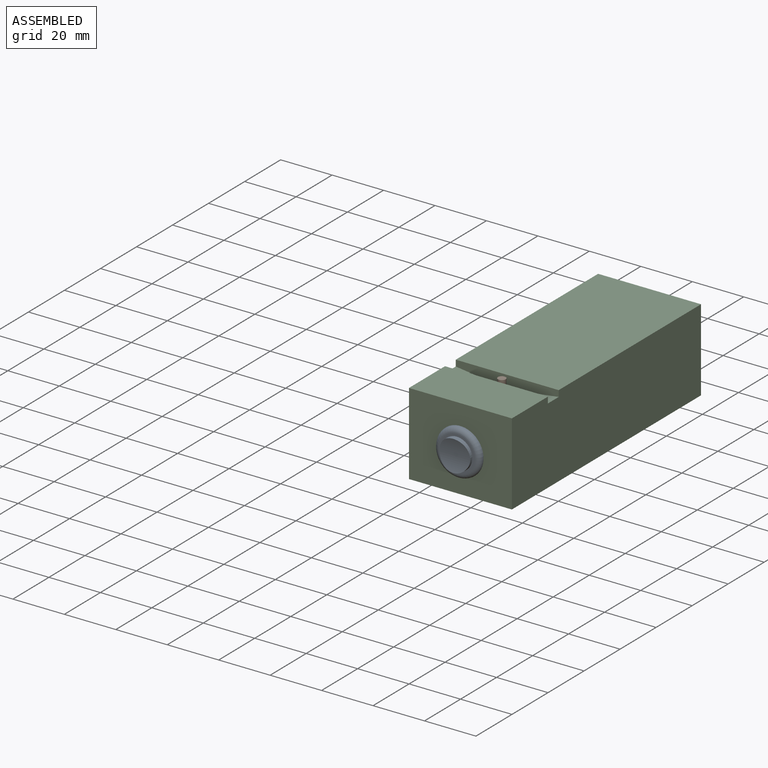
[diagram: assembled view]
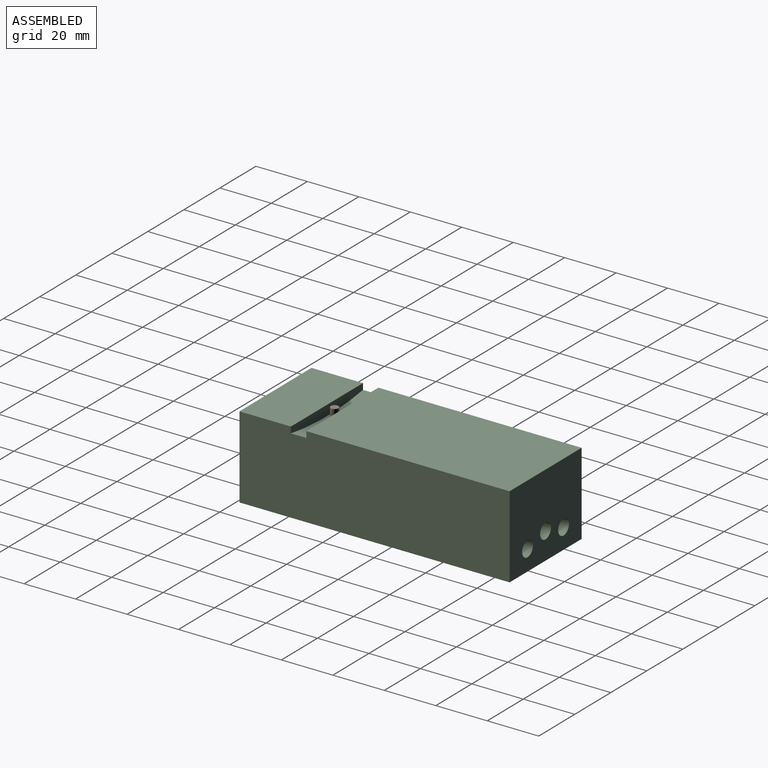
[diagram: assembled view, second angle]
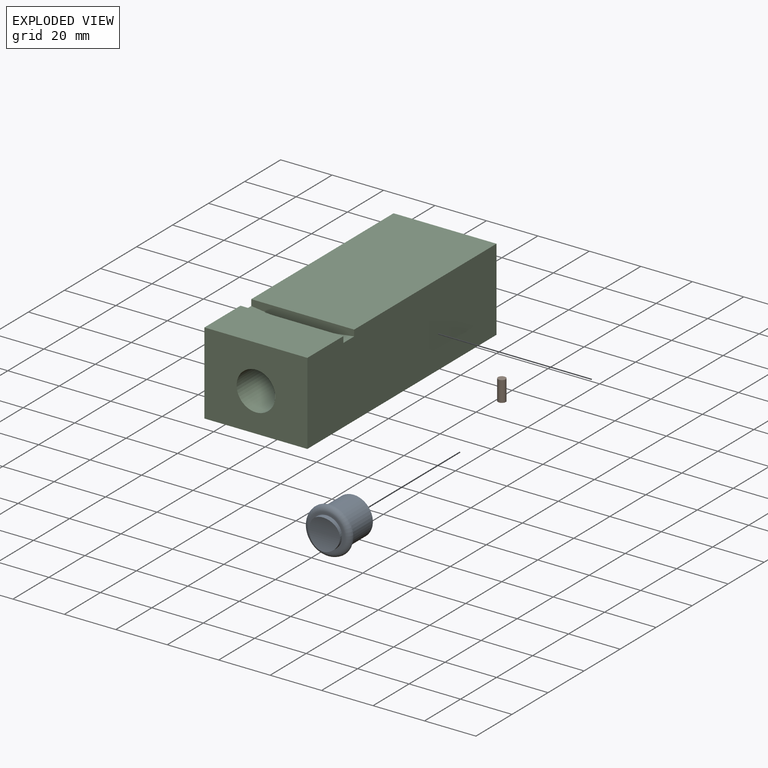
[diagram: exploded view]
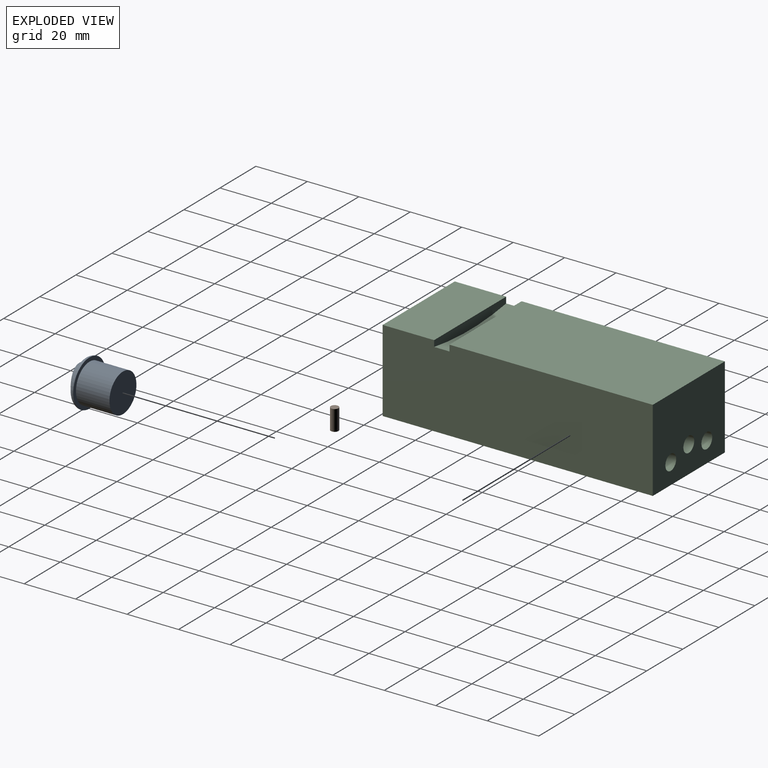
[diagram: exploded view, second angle]
ASSEMBLY  parts=3 mates=2
PART A: 7 faces, bbox 19.5x17x19.5 mm
  f0: cylinder r=7.5mm len=15mm, axis (0,-1,0), area 612.6mm2, adj f1,f2
  f1: plane 15x15mm, normal (0,1,0), area 176.7mm2, adj f0
  f2: plane 18x18mm, normal (0,1,0), area 77.8mm2, adj f0,f6
  f3: plane 14x14mm, normal (0,-1,0), area 40.8mm2, adj f4,f6
  f4: cylinder r=6mm len=12mm, axis (0,1,0), area 58.5mm2, adj f3,f5
  f5: cylinder r=20.68mm len=12mm, axis (1,0,0), area 114.4mm2, adj f4
  f6: torus R=7mm, axis (0,-1,0), area 163.3mm2, adj f2,f3
PART B: 3 faces, bbox 3x3x8 mm
  f0: cylinder r=1.5mm len=8mm, axis (0,0,-1), area 75.4mm2, adj f1,f2
  f1: plane 3x3mm, normal (0,0,1), area 7.1mm2, adj f0
  f2: plane 3x3mm, normal (0,0,-1), area 7.1mm2, adj f0
PART C: 24 faces, bbox 40x105x32 mm
  f0: plane 40x32mm, normal (0,1,0), area 1195.2mm2, adj f1,f2,f3,f4,f9,f15,f17
  f1: plane 105x32mm, normal (1,0,0), area 3345.7mm2, adj f0,f2,f4,f5,f6,f10,f11,f12
  f2: plane 79x40mm, normal (0,0,1), area 3160mm2, adj f0,f1,f3,f11
  f3: plane 105x32mm, normal (-1,0,0), area 3345.7mm2, adj f0,f2,f4,f5,f6,f10,f11,f12
  f4: plane 105x40mm, normal (0,0,-1), area 4176.2mm2, adj f0,f1,f3,f6,f23
  f5: plane 40x20mm, normal (0,0,1), area 800mm2, adj f1,f3,f6,f12
  f6: plane 40x32mm, normal (0,-1,0), area 1103.3mm2, adj f1,f3,f4,f5,f7
  f7: cylinder r=7.5mm len=75mm, axis (0,-1,0), area 3534.3mm2, adj f6,f8
  f8: plane 15x15mm, normal (0,-1,0), area 148.4mm2, adj f7,f9
  f9: cylinder r=3mm len=30mm, axis (0,-1,0), area 537.6mm2, adj f0,f8,f19,f20,f21,f22,f23
  f10: cylinder r=125mm len=40mm, axis (0,-1,0), area 234mm2, adj f1,f3,f11,f12,f13
  f11: plane 40x4mm, normal (0,-1,0), area 138.6mm2, adj f1,f2,f3,f10
  f12: plane 40x4mm, normal (0,1,0), area 138.6mm2, adj f1,f3,f5,f10
  f13: cylinder r=1.5mm len=4.01mm, axis (0,0,1), area 37.8mm2, adj f10,f14
  f14: plane 3x3mm, normal (0,0,1), area 7.1mm2, adj f13
  f15: cylinder r=3mm len=10mm, axis (0,1,0), area 188.5mm2, adj f0,f16
  f16: plane 6x6mm, normal (0,1,0), area 28.3mm2, adj f15
  f17: cylinder r=3mm len=10mm, axis (0,1,0), area 188.5mm2, adj f0,f18
  f18: plane 6x6mm, normal (0,1,0), area 28.3mm2, adj f17
  f19: plane 0.1x0mm, normal (0,0,-1), area 0mm2, adj f9,f20
  f20: cylinder r=2.75mm len=0.1mm, axis (0,0,-1), area 0mm2, adj f9,f19
  f21: plane 0.1x0mm, normal (0,0,-1), area 0mm2, adj f9,f22
  f22: cylinder r=2.75mm len=0.1mm, axis (0,0,-1), area 0mm2, adj f9,f21
  f23: cylinder r=2.75mm len=9.3mm, axis (0,0,-1), area 143.5mm2, adj f4,f9
PLACE A t=(13.67,1.24,14.52)mm
PLACE B t=(13.67,26.24,23.52)mm
PLACE C t=(33.67,3.24,-0.48)mm
MATE parallel A.f0 <-> C.f7  axis (0,1,0) through (13.67,3.24,14.52)mm
MATE parallel C.f13 <-> B.f0  axis (0,0,1) through (13.67,26.24,23.52)mm
